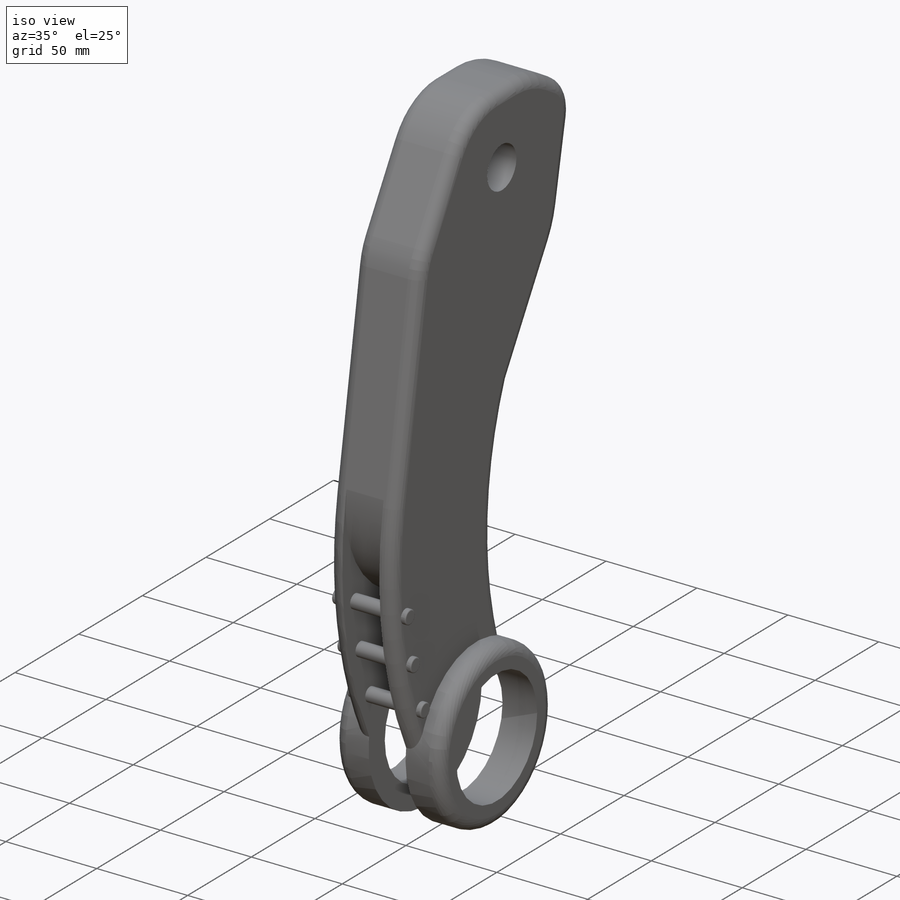
[diagram: iso view]
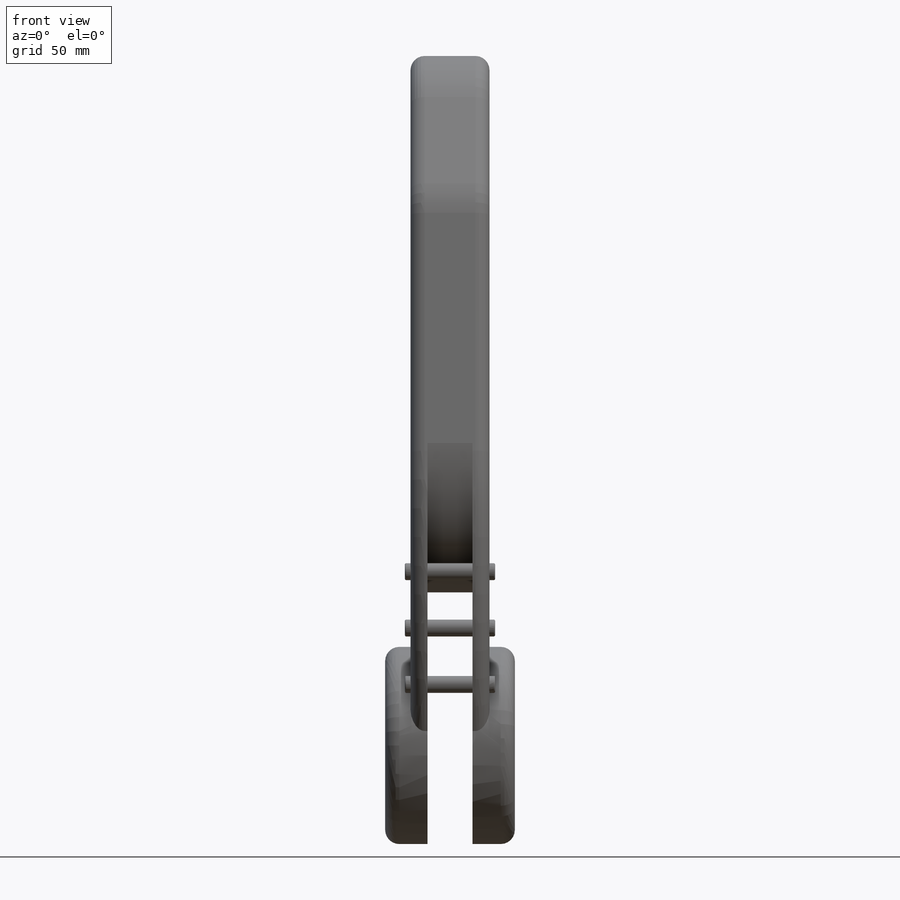
[diagram: front view]
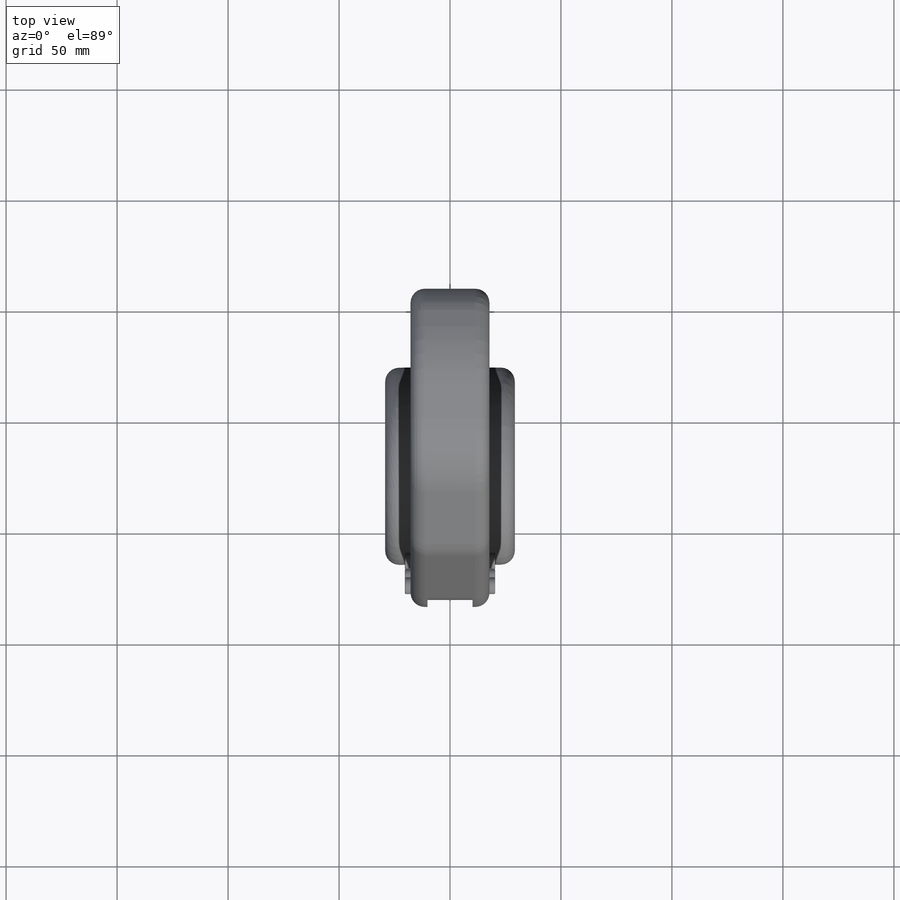
[diagram: top view]
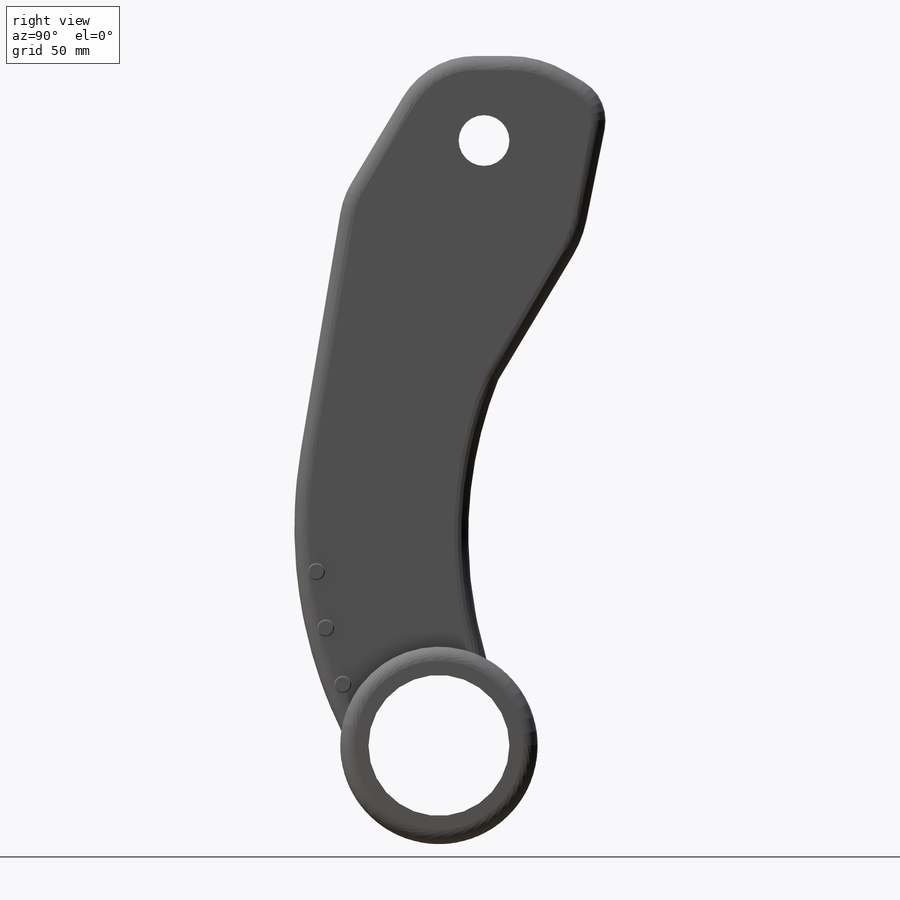
[diagram: right view]
SOLIDWORKS PART (.sldprt)
format: sldprt  version: not decoded by parser v0  size: 605,696 bytes
history: native  units: mm
features: sketch x8, fillet x8, extrude x4, cut_extrude x4, material x1, mirror x1 (+13 scaffold rows collapsed)
feature tree (39):
  scaffold x13  (default folders/planes/origin — collapsed)
  material  "Material <not specified>"
  sketch  "Sketch1"  dims[D1=22.86mm D17=190.5mm D2=38.1mm D3=50.8mm D4=31.75mm D5=19.05mm D6=63.5mm D7=12.7mm D8=38.1mm D9=63.5mm D10=114.3mm D11=19.05mm D12=63.5mm D13=38.1mm D14=139.7mm D15=25.4mm D16=101.6mm D18=19.05mm D19=12.7mm]
  extrude  "Boss-Extrude1"  Depth=35.56mm
  fillet  "Fillet1"  Radius=38.1mm
  fillet  "Fillet2"  Radius=50.8mm
  fillet  "Fillet3"  Radius=20.32mm
  sketch  "Sketch2"  dims[D2=190.5mm D1=30.48mm]
  cut_extrude  "Cut-Extrude1"  [1 undecoded]
  fillet  "Fillet4"  Radius=6.35mm
  sketch  "Sketch3"
  extrude  "Boss-Extrude2"  Depth=38.1mm
  sketch  "Sketch4"  dims[D1=88.9mm]
  extrude  "Boss-Extrude3"  Depth=20.32mm
  mirror  "Mirror1"
  fillet  "Fillet5"  Radius=6.35mm
  sketch  "Sketch5"  dims[D1=63.5mm]
  cut_extrude  "Cut-Extrude2"  [1 undecoded]
  sketch  "Sketch6"
  cut_extrude  "Cut-Extrude3"  Depth=20.32mm
  sketch  "Sketch7"  dims[D1=127.0mm D2=152.4mm]
  cut_extrude  "Cut-Extrude4"  Depth=20.32mm
  fillet  "Fillet7"  Radius=58.42mm
  sketch  "Sketch8"  dims[c1.D1=~354.202215mm c1.D3=7.62mm c2.D1=8.89mm c2.D2=76.2mm c2.D4=25.4mm c2.D5=25.4mm]
  extrude  "Boss-Extrude4"  Depth=30.48mm
  fillet  "Fillet8"  Radius=0.635mm
  fillet  "Fillet9"  Radius=15.24mm
decode coverage: 20 of 25 modeling features carry decoded parameters
note: ~ marks probable driven/reference dimensions
note: 2 parameter values undecoded
note: suppression state not decoded; provenance and decode notes live in map.json
